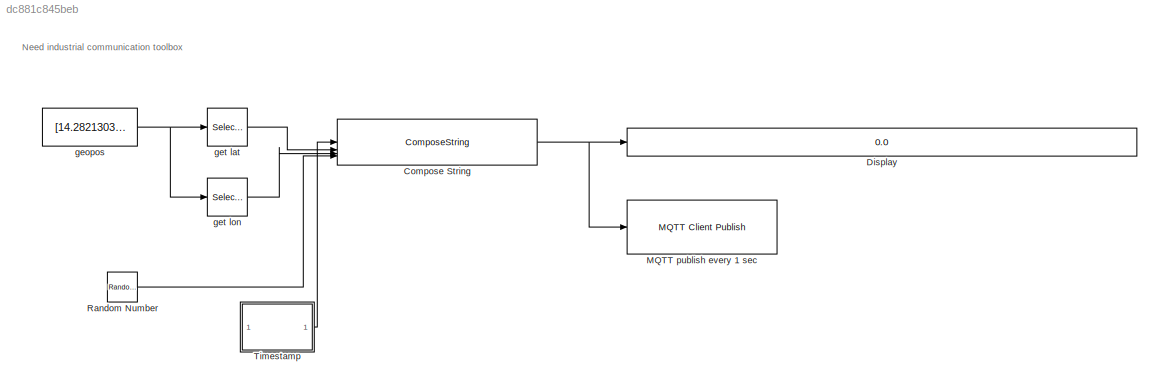
MODEL slx_dc881c845beb
KIND model
CONFIG AbsTol = auto
CONFIG EnableMultiTasking = off
CONFIG FixedStep = auto
CONFIG MaxStep = auto
CONFIG MinStep = auto
CONFIG RelTol = 1e-3
CONFIG SampleTimeConstraint = Unconstrained
CONFIG SolverName = VariableStepAuto
CONFIG StartTime = 0.0
CONFIG StopTime = inf
BLOCK [ComposeString] Compose String
  Format = '{ \"timestamp \": %f, \"latitude \": %f, \"longitude\": %f, \"altitude \": %f }'
BLOCK [Display] Display
  Decimation = 1
BLOCK [Reference] MQTT publish every 1 sec  REF=mqttlib/MQTT Client Publish
  SourceBlock = mqttlib/MQTT Client Publish
  SourceType = MQTTPublish
BLOCK [RandomNumber] Random Number
  SampleTime = 1
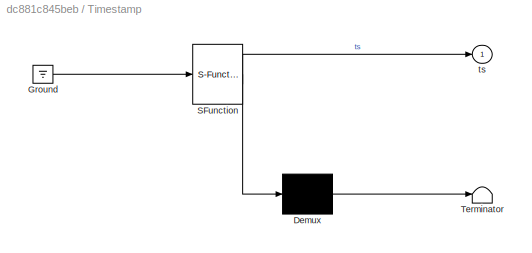
BLOCK [SubSystem] Timestamp
  ErrorFcn = Stateflow.Translate.translate
  PermitHierarchicalResolution = ExplicitOnly
  SFBlockType = MATLAB Function
  TreatAsAtomicUnit = on
BLOCK [Demux] Timestamp/ Demux 
  Outputs = 1
BLOCK [Ground] Timestamp/ Ground 
BLOCK [S-Function] Timestamp/ SFunction 
  EnableBusSupport = off
  FunctionName = sf_sfun
  PortCounts = [1 2]
  SFcnIsStateOwnerBlock = off
  SFunctionDeploymentMode = off
  Tag = Stateflow S-Function 2
BLOCK [Terminator] Timestamp/ Terminator 
BLOCK [Outport] Timestamp/ts
BLOCK [Constant] geopos
  Value = [14.28213039281325, 101.16312386873248, 100]
BLOCK [Selector] get lat
  IndexOptions = Index vector (dialog)
  Indices = [1]
  InputPortWidth = 3
  OutputSizes = 1
BLOCK [Selector] get lon
  IndexOptions = Index vector (dialog)
  Indices = [2]
  InputPortWidth = 3
  OutputSizes = 1
ANNOTATION (root): Need industrial communication toolbox
NET Compose String:1 -> Display:1, MQTT publish every 1 sec:1
LINE Random Number:1 -> Compose String:4
LINE Timestamp:1 -> Compose String:1
NET geopos:1 -> get lat:1, get lon:1
LINE get lat:1 -> Compose String:2
LINE get lon:1 -> Compose String:3
note: NET lines group one-source signal fan-out (src -> all destinations, sorted); 1:1 wires keep LINE
CHART Timestamp states=1 transitions=1
  STATE_LABEL 'eML_blk_kernel()'
  STATE_LABEL "SCRIPT:\nfunction ts = fcn()\n    % Real-world UNIX timestamp\n    ts = posixtime(datetime('now'));\nend"
CHART  states=0 transitions=0
